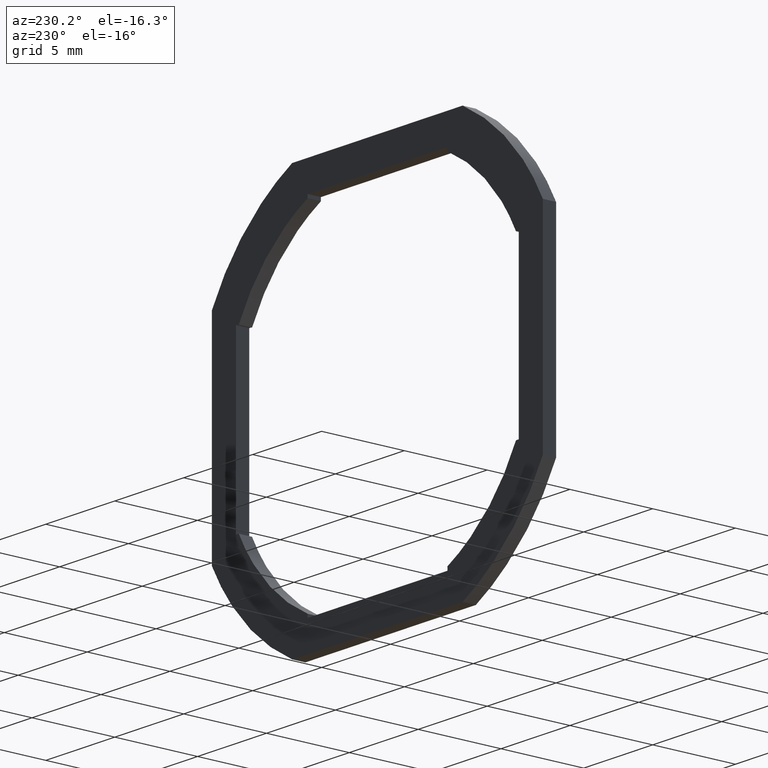
[diagram: clean part render]
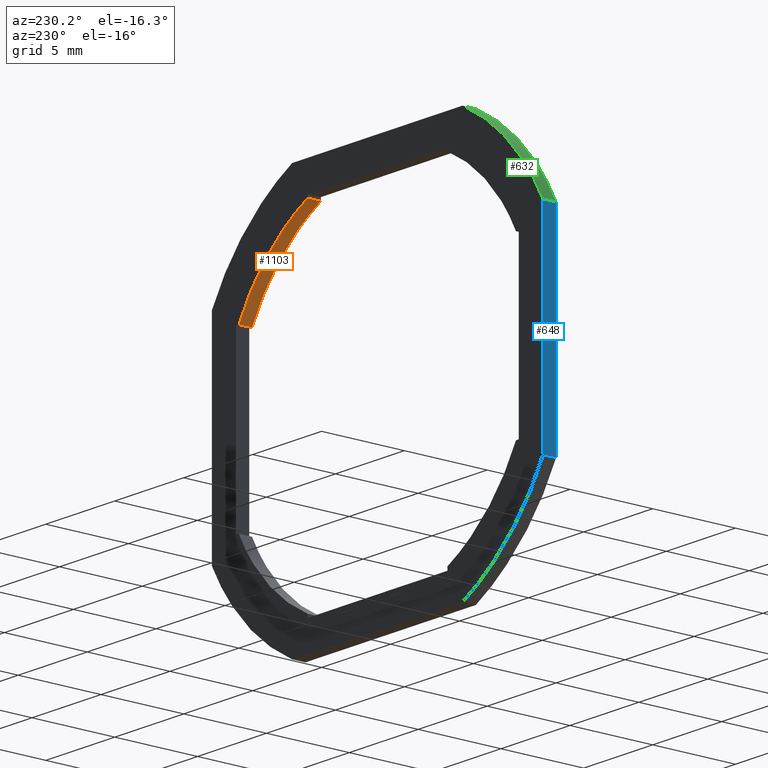
[diagram: same view with three faces highlighted in distinct colors, each labeled with its STEP entity id]
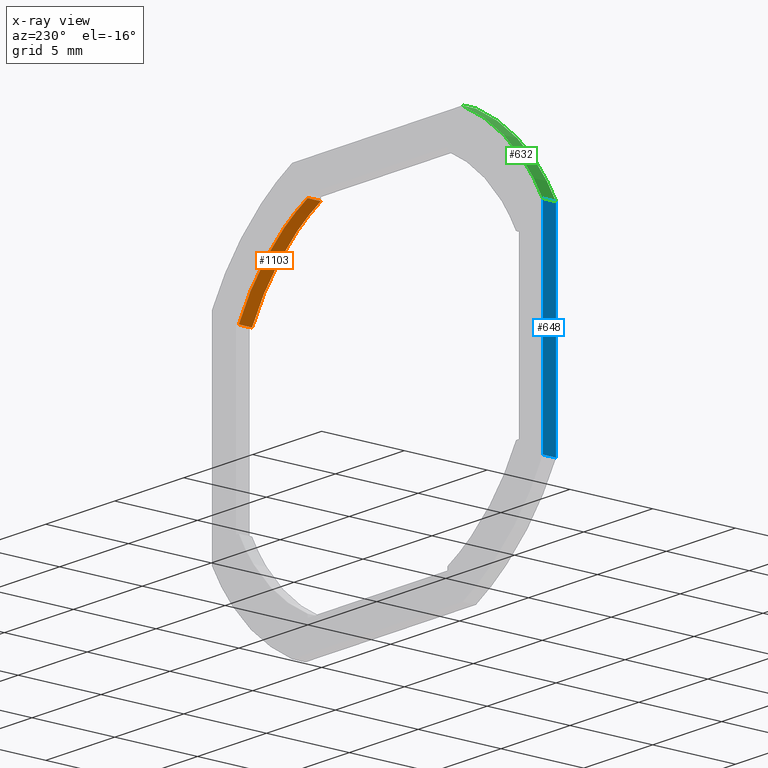
[diagram: x-ray of the same camera — body ghosted, the three highlighted faces saturated]
A machine part, auxiliary view with three faces highlighted in distinct colors.
The next image is the same camera in x-ray (body ghosted, the three faces saturated) — at least one of them is partly hidden behind the body in this view.
Their STEP definitions:

[orange] entity #1103 — the highlighted face is a freeform B-spline surface patch.
#139=CARTESIAN_POINT('',(10.050000477349361,0.0,5.055690104038270));
#140=VERTEX_POINT('',#139);
#141=CARTESIAN_POINT('',(5.055690104038360,0.0,10.050000477349300));
#142=VERTEX_POINT('',#141);
#143=CARTESIAN_POINT('',(10.050000477349350,0.0,5.055690104038258));
#144=CARTESIAN_POINT('',(8.378465806703092,0.0,8.378465806703007));
#145=CARTESIAN_POINT('',(5.055690104038360,0.0,10.050000477349300));
#153=(BOUNDED_CURVE()B_SPLINE_CURVE(2,(#143,#144,#145),.UNSPECIFIED.,.F.,.U.)CURVE()GEOMETRIC_REPRESENTATION_ITEM()QUASI_UNIFORM_CURVE()RATIONAL_B_SPLINE_CURVE((1.0,0.949452065534999,1.0))REPRESENTATION_ITEM(''));
#154=EDGE_CURVE('',#140,#142,#153,.T.);
#409=CARTESIAN_POINT('',(10.050000477349361,0.800000000000023,5.055690104038270));
#410=VERTEX_POINT('',#409);
#411=CARTESIAN_POINT('',(5.055690104038360,0.800000000000023,10.050000477349300));
#412=VERTEX_POINT('',#411);
#413=CARTESIAN_POINT('',(10.050000477349350,0.800000000000023,5.055690104038258));
#414=CARTESIAN_POINT('',(8.378465806703092,0.800000000000023,8.378465806703007));
#415=CARTESIAN_POINT('',(5.055690104038360,0.800000000000023,10.050000477349300));
#423=(BOUNDED_CURVE()B_SPLINE_CURVE(2,(#413,#414,#415),.UNSPECIFIED.,.F.,.U.)CURVE()GEOMETRIC_REPRESENTATION_ITEM()QUASI_UNIFORM_CURVE()RATIONAL_B_SPLINE_CURVE((1.0,0.949452065534999,1.0))REPRESENTATION_ITEM(''));
#424=EDGE_CURVE('',#410,#412,#423,.T.);
#590=CARTESIAN_POINT('',(10.050000477349361,0.800000000000023,5.055690104038270));
#591=CARTESIAN_POINT('',(10.050000477349361,0.0,5.055690104038270));
#592=QUASI_UNIFORM_CURVE('',1,(#590,#591),.UNSPECIFIED.,.F.,.U.);
#593=EDGE_CURVE('',#410,#140,#592,.T.);
#1075=CARTESIAN_POINT('',(5.055690104038360,0.800000000000023,10.050000477349300));
#1076=CARTESIAN_POINT('',(5.055690104038360,0.0,10.050000477349300));
#1077=QUASI_UNIFORM_CURVE('',1,(#1075,#1076),.UNSPECIFIED.,.F.,.U.);
#1078=EDGE_CURVE('',#412,#142,#1077,.T.);
#1083=CARTESIAN_POINT('',(4.740136013319941,0.820000000000024,10.202628220121509));
#1084=CARTESIAN_POINT('',(4.740136013319941,-0.020500000000001,10.202628220121509));
#1085=CARTESIAN_POINT('',(8.471198215107059,0.820000000000024,8.469178570770549));
#1086=CARTESIAN_POINT('',(8.471198215107059,-0.020500000000001,8.469178570770549));
#1087=CARTESIAN_POINT('',(10.203758175164902,0.820000000000024,4.737703148736539));
#1088=CARTESIAN_POINT('',(10.203758175164902,-0.020500000000001,4.737703148736539));
#1096=(BOUNDED_SURFACE()B_SPLINE_SURFACE(1,2,((#1083,#1085,#1087),(#1084,#1086,#1088)),.UNSPECIFIED.,.F.,.F.,.U.)B_SPLINE_SURFACE_WITH_KNOTS((2,2),(3,3),(0.0,1.0),(0.0,7.970024351864248),.UNSPECIFIED.)GEOMETRIC_REPRESENTATION_ITEM()RATIONAL_B_SPLINE_SURFACE(((0.999589059613548,0.935053242562829,0.991658737121429),(0.999589059613548,0.935053242562829,0.991658737121429)))REPRESENTATION_ITEM('')SURFACE());
#1097=ORIENTED_EDGE('',*,*,#154,.T.);
#1098=ORIENTED_EDGE('',*,*,#1078,.F.);
#1099=ORIENTED_EDGE('',*,*,#424,.F.);
#1100=ORIENTED_EDGE('',*,*,#593,.T.);
#1101=EDGE_LOOP('',(#1097,#1098,#1099,#1100));
#1102=FACE_OUTER_BOUND('',#1101,.T.);
#1103=ADVANCED_FACE('',(#1102),#1096,.F.);

[blue] entity #648 — the highlighted face is a freeform B-spline surface patch.
#58=CARTESIAN_POINT('',(-12.000000569969400,0.0,6.184658732181750));
#59=VERTEX_POINT('',#58);
#73=CARTESIAN_POINT('',(-12.000000569969540,0.0,-6.184658732181720));
#74=VERTEX_POINT('',#73);
#75=CARTESIAN_POINT('',(-12.000000569969540,0.0,-6.184658732181720));
#76=CARTESIAN_POINT('',(-12.000000569969400,0.0,6.184658732181750));
#77=QUASI_UNIFORM_CURVE('',1,(#75,#76),.UNSPECIFIED.,.F.,.U.);
#78=EDGE_CURVE('',#74,#59,#77,.T.);
#372=CARTESIAN_POINT('',(-12.000000569969540,0.800000000000023,-6.184658732181720));
#373=VERTEX_POINT('',#372);
#387=CARTESIAN_POINT('',(-12.000000569969400,0.800000000000023,6.184658732181750));
#388=VERTEX_POINT('',#387);
#389=CARTESIAN_POINT('',(-12.000000569969540,0.800000000000023,-6.184658732181720));
#390=CARTESIAN_POINT('',(-12.000000569969400,0.800000000000023,6.184658732181750));
#391=QUASI_UNIFORM_CURVE('',1,(#389,#390),.UNSPECIFIED.,.F.,.U.);
#392=EDGE_CURVE('',#373,#388,#391,.T.);
#625=CARTESIAN_POINT('',(-12.000000569969400,0.800000000000023,6.184658732181750));
#626=CARTESIAN_POINT('',(-12.000000569969400,0.0,6.184658732181750));
#627=QUASI_UNIFORM_CURVE('',1,(#625,#626),.UNSPECIFIED.,.F.,.U.);
#628=EDGE_CURVE('',#388,#59,#627,.T.);
#633=CARTESIAN_POINT('',(-12.000000569969520,-0.039959998449446,6.802505839132072));
#634=CARTESIAN_POINT('',(-12.000000569969520,-0.039959998449446,-6.802505507361095));
#635=CARTESIAN_POINT('',(-12.000000569969520,0.839960019907141,6.802505839132072));
#636=CARTESIAN_POINT('',(-12.000000569969520,0.839960019907141,-6.802505507361095));
#637=B_SPLINE_SURFACE_WITH_KNOTS('',1,1,((#633,#635),(#634,#636)),.UNSPECIFIED.,.F.,.F.,.U.,(2,2),(2,2),(0.0,13.605011346493169),(0.041708334948495,0.958291687403247),.UNSPECIFIED.);
#638=ORIENTED_EDGE('',*,*,#78,.T.);
#639=ORIENTED_EDGE('',*,*,#628,.F.);
#640=ORIENTED_EDGE('',*,*,#392,.F.);
#641=CARTESIAN_POINT('',(-12.000000569969540,0.800000000000023,-6.184658732181720));
#642=CARTESIAN_POINT('',(-12.000000569969540,0.0,-6.184658732181720));
#643=QUASI_UNIFORM_CURVE('',1,(#641,#642),.UNSPECIFIED.,.F.,.U.);
#644=EDGE_CURVE('',#373,#74,#643,.T.);
#645=ORIENTED_EDGE('',*,*,#644,.T.);
#646=EDGE_LOOP('',(#638,#639,#640,#645));
#647=FACE_OUTER_BOUND('',#646,.T.);
#648=ADVANCED_FACE('',(#647),#637,.F.);

[green] entity #632 — the highlighted face is a freeform B-spline surface patch.
#49=CARTESIAN_POINT('',(-6.184658732181810,0.0,12.000000569969499));
#50=VERTEX_POINT('',#49);
#58=CARTESIAN_POINT('',(-12.000000569969400,0.0,6.184658732181750));
#59=VERTEX_POINT('',#58);
#60=CARTESIAN_POINT('',(-6.184658732181801,0.0,12.000000569969490));
#61=CARTESIAN_POINT('',(-10.022184869378352,0.0,10.022184869378339));
#62=CARTESIAN_POINT('',(-12.000000569969400,0.0,6.184658732181750));
#70=(BOUNDED_CURVE()B_SPLINE_CURVE(2,(#60,#61,#62),.UNSPECIFIED.,.F.,.U.)CURVE()GEOMETRIC_REPRESENTATION_ITEM()QUASI_UNIFORM_CURVE()RATIONAL_B_SPLINE_CURVE((1.0,0.952481132990554,1.0))REPRESENTATION_ITEM(''));
#71=EDGE_CURVE('',#50,#59,#70,.T.);
#319=CARTESIAN_POINT('',(-6.184658732181810,0.800000000000023,12.000000569969499));
#320=VERTEX_POINT('',#319);
#387=CARTESIAN_POINT('',(-12.000000569969400,0.800000000000023,6.184658732181750));
#388=VERTEX_POINT('',#387);
#394=CARTESIAN_POINT('',(-6.184658732181801,0.800000000000023,12.000000569969490));
#395=CARTESIAN_POINT('',(-10.022184869378352,0.800000000000023,10.022184869378339));
#396=CARTESIAN_POINT('',(-12.000000569969400,0.800000000000023,6.184658732181750));
#404=(BOUNDED_CURVE()B_SPLINE_CURVE(2,(#394,#395,#396),.UNSPECIFIED.,.F.,.U.)CURVE()GEOMETRIC_REPRESENTATION_ITEM()QUASI_UNIFORM_CURVE()RATIONAL_B_SPLINE_CURVE((1.0,0.952481132990554,1.0))REPRESENTATION_ITEM(''));
#405=EDGE_CURVE('',#320,#388,#404,.T.);
#604=CARTESIAN_POINT('',(-12.181558244355090,0.820000000000024,5.818905056125733));
#605=CARTESIAN_POINT('',(-12.181558244355090,-0.020500000000001,5.818905056125733));
#606=CARTESIAN_POINT('',(-10.124041075751940,0.820000000000024,10.126204279321414));
#607=CARTESIAN_POINT('',(-10.124041075751940,-0.020500000000001,10.126204279321414));
#608=CARTESIAN_POINT('',(-5.816302368192584,0.820000000000024,12.182801158788486));
#609=CARTESIAN_POINT('',(-5.816302368192584,-0.020500000000001,12.182801158788486));
#617=(BOUNDED_SURFACE()B_SPLINE_SURFACE(1,2,((#604,#606,#608),(#605,#607,#609)),.UNSPECIFIED.,.F.,.F.,.U.)B_SPLINE_SURFACE_WITH_KNOTS((2,2),(3,3),(0.0,1.0),(0.0,9.265852647169615),.UNSPECIFIED.)GEOMETRIC_REPRESENTATION_ITEM()RATIONAL_B_SPLINE_SURFACE(((0.999040341611489,0.938435643467747,0.991719776889732),(0.999040341611489,0.938435643467747,0.991719776889732)))REPRESENTATION_ITEM('')SURFACE());
#618=ORIENTED_EDGE('',*,*,#71,.F.);
#619=CARTESIAN_POINT('',(-6.184658732181810,0.800000000000023,12.000000569969499));
#620=CARTESIAN_POINT('',(-6.184658732181810,0.0,12.000000569969499));
#621=QUASI_UNIFORM_CURVE('',1,(#619,#620),.UNSPECIFIED.,.F.,.U.);
#622=EDGE_CURVE('',#320,#50,#621,.T.);
#623=ORIENTED_EDGE('',*,*,#622,.F.);
#624=ORIENTED_EDGE('',*,*,#405,.T.);
#625=CARTESIAN_POINT('',(-12.000000569969400,0.800000000000023,6.184658732181750));
#626=CARTESIAN_POINT('',(-12.000000569969400,0.0,6.184658732181750));
#627=QUASI_UNIFORM_CURVE('',1,(#625,#626),.UNSPECIFIED.,.F.,.U.);
#628=EDGE_CURVE('',#388,#59,#627,.T.);
#629=ORIENTED_EDGE('',*,*,#628,.T.);
#630=EDGE_LOOP('',(#618,#623,#624,#629));
#631=FACE_OUTER_BOUND('',#630,.T.);
#632=ADVANCED_FACE('',(#631),#617,.T.);